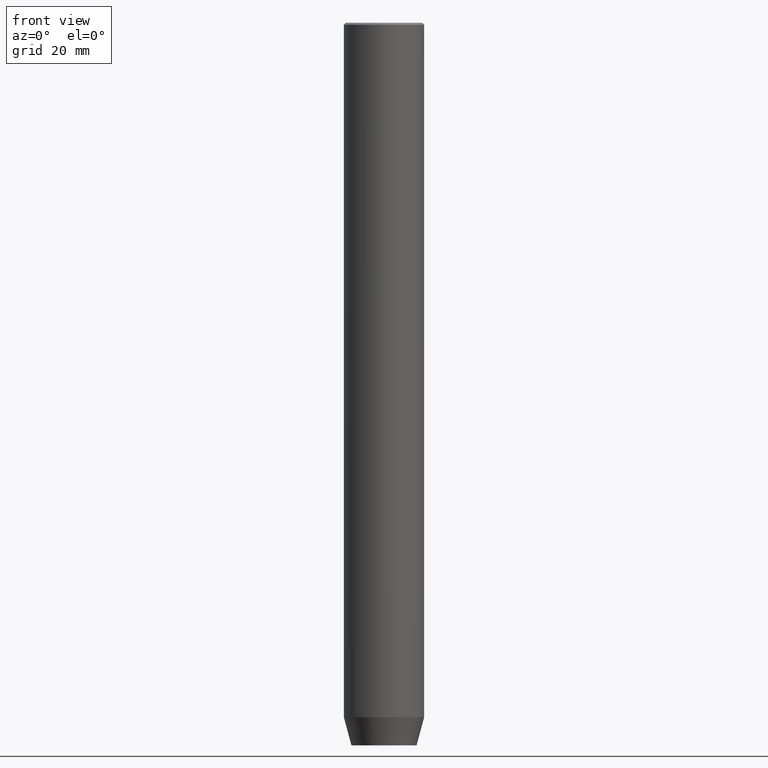
[diagram: clean part render]
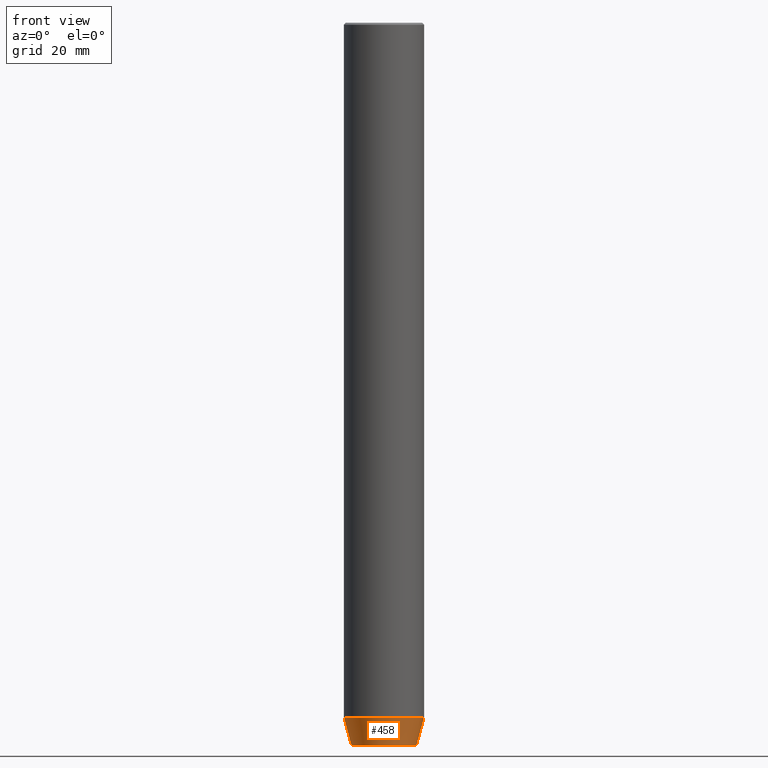
[diagram: same view with one face highlighted and labeled with its STEP entity id]
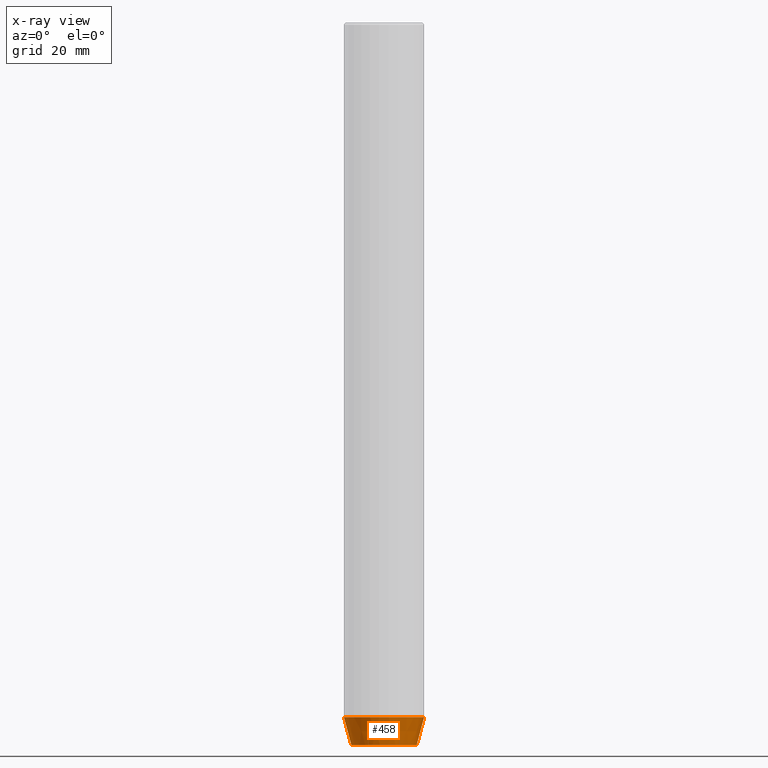
[diagram: x-ray of the same camera — body ghosted, the highlighted face saturated]
A machine part, front view. The second image highlights one B-rep face of the part: STEP entity #458.
The next image is the same camera in x-ray: the body ghosted, the highlighted face saturated — about 0% of this face is hidden behind the body in this view.
In plain terms, the highlighted conical surface has half-angle 15 deg.
Its self-contained STEP definition (entity closure, byte-faithful):
#7 = VERTEX_POINT ( 'NONE', #407 ) ;
#15 = ORIENTED_EDGE ( 'NONE', *, *, #583, .F. ) ;
#23 = EDGE_LOOP ( 'NONE', ( #419, #431, #485, #15 ) ) ;
#38 = CARTESIAN_POINT ( 'NONE',  ( -8.124355652982135467, 1.109796706851640556E-15, -180.0000000000000000 ) ) ;
#56 = CARTESIAN_POINT ( 'NONE',  ( 0.000000000000000000, 0.000000000000000000, -180.0000000000000000 ) ) ;
#85 = LINE ( 'NONE', #503, #242 ) ;
#101 = EDGE_CURVE ( 'NONE', #524, #7, #432, .T. ) ;
#129 = EDGE_CURVE ( 'NONE', #352, #524, #417, .T. ) ;
#132 = FACE_OUTER_BOUND ( 'NONE', #23, .T. ) ;
#165 = VECTOR ( 'NONE', #338, 1000.000000000000000 ) ;
#174 = DIRECTION ( 'NONE',  ( -0.2588190451025213501, 3.169619151431772337E-17, 0.9659258262890680902 ) ) ;
#220 = CARTESIAN_POINT ( 'NONE',  ( 0.000000000000000000, 0.000000000000000000, -173.0000000000000000 ) ) ;
#226 = CARTESIAN_POINT ( 'NONE',  ( 8.124355652982135467, 0.000000000000000000, -180.0000000000000000 ) ) ;
#228 = CARTESIAN_POINT ( 'NONE',  ( 10.00000000000000000, 0.000000000000000000, -173.0000000000000000 ) ) ;
#229 = CARTESIAN_POINT ( 'NONE',  ( 0.000000000000000000, 0.000000000000000000, -173.0000000000000000 ) ) ;
#242 = VECTOR ( 'NONE', #174, 1000.000000000000000 ) ;
#246 = VERTEX_POINT ( 'NONE', #350 ) ;
#271 = DIRECTION ( 'NONE',  ( -0.000000000000000000, -0.000000000000000000, 1.000000000000000000 ) ) ;
#334 = DIRECTION ( 'NONE',  ( -0.000000000000000000, -0.000000000000000000, 1.000000000000000000 ) ) ;
#338 = DIRECTION ( 'NONE',  ( 0.2588190451025213501, 0.000000000000000000, 0.9659258262890680902 ) ) ;
#350 = CARTESIAN_POINT ( 'NONE',  ( -10.00000000000000000, 1.224646799147353256E-15, -173.0000000000000000 ) ) ;
#352 = VERTEX_POINT ( 'NONE', #38 ) ;
#359 = EDGE_CURVE ( 'NONE', #352, #246, #85, .T. ) ;
#378 = DIRECTION ( 'NONE',  ( 1.000000000000000000, 0.000000000000000000, 0.000000000000000000 ) ) ;
#380 = DIRECTION ( 'NONE',  ( 1.000000000000000000, 0.000000000000000000, 0.000000000000000000 ) ) ;
#407 = CARTESIAN_POINT ( 'NONE',  ( 10.00000000000000000, 0.000000000000000000, -173.0000000000000000 ) ) ;
#417 = CIRCLE ( 'NONE', #587, 8.124355652982135467 ) ;
#419 = ORIENTED_EDGE ( 'NONE', *, *, #359, .F. ) ;
#424 = DIRECTION ( 'NONE',  ( 1.000000000000000000, 0.000000000000000000, 0.000000000000000000 ) ) ;
#431 = ORIENTED_EDGE ( 'NONE', *, *, #129, .T. ) ;
#432 = LINE ( 'NONE', #228, #165 ) ;
#455 = CONICAL_SURFACE ( 'NONE', #584, 10.00000000000000000, 0.2617993877991500740 ) ;
#457 = AXIS2_PLACEMENT_3D ( 'NONE', #229, #464, #424 ) ;
#458 = ADVANCED_FACE ( 'NONE', ( #132 ), #455, .T. ) ;
#464 = DIRECTION ( 'NONE',  ( -0.000000000000000000, -0.000000000000000000, 1.000000000000000000 ) ) ;
#485 = ORIENTED_EDGE ( 'NONE', *, *, #101, .T. ) ;
#503 = CARTESIAN_POINT ( 'NONE',  ( -10.00000000000000000, 1.224646799147353256E-15, -173.0000000000000000 ) ) ;
#524 = VERTEX_POINT ( 'NONE', #226 ) ;
#528 = CIRCLE ( 'NONE', #457, 10.00000000000000000 ) ;
#583 = EDGE_CURVE ( 'NONE', #246, #7, #528, .T. ) ;
#584 = AXIS2_PLACEMENT_3D ( 'NONE', #220, #271, #378 ) ;
#587 = AXIS2_PLACEMENT_3D ( 'NONE', #56, #334, #380 ) ;